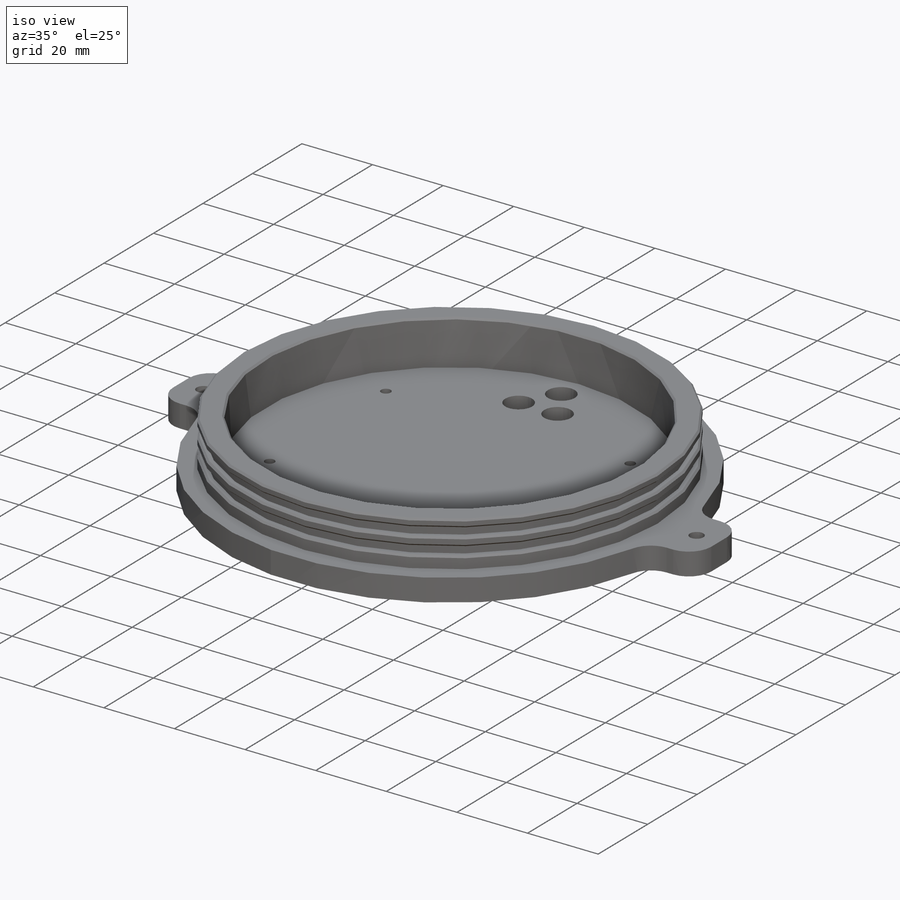
[diagram: iso view]
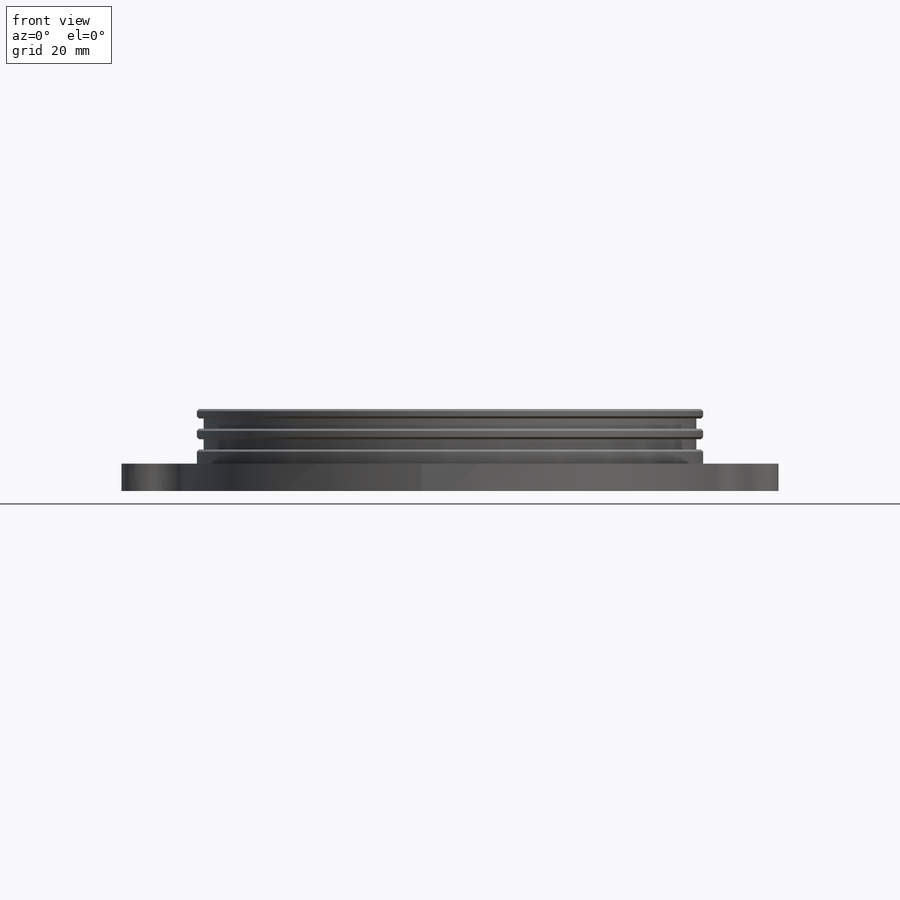
[diagram: front view]
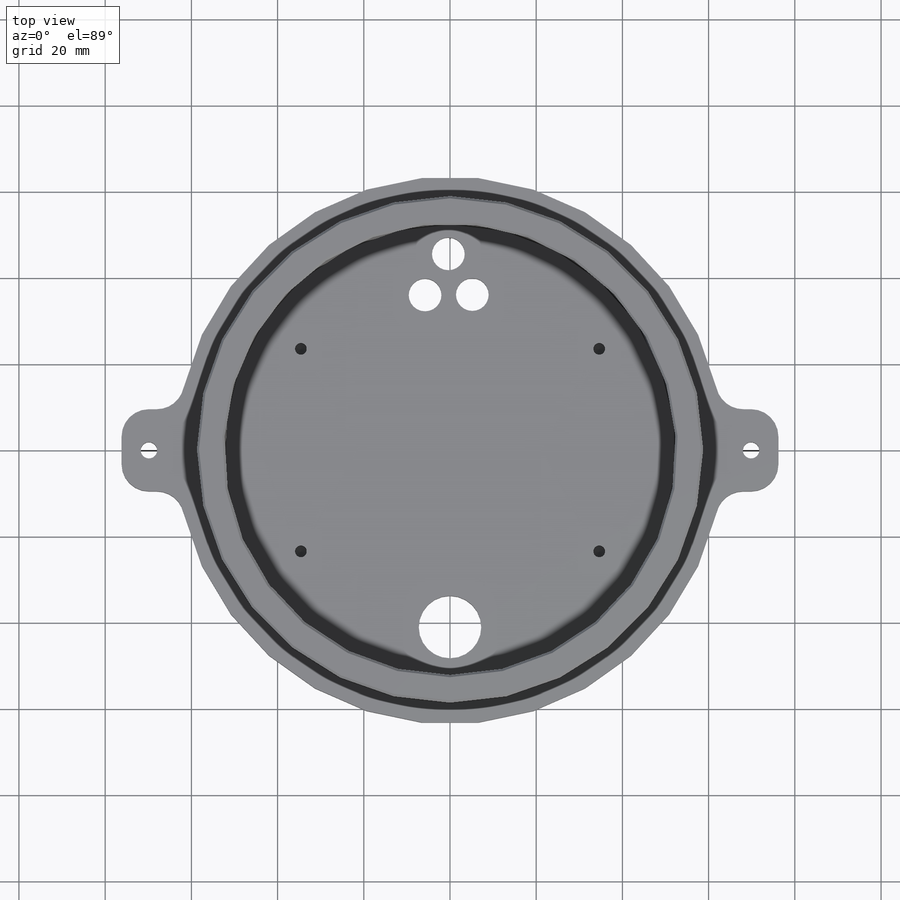
[diagram: top view]
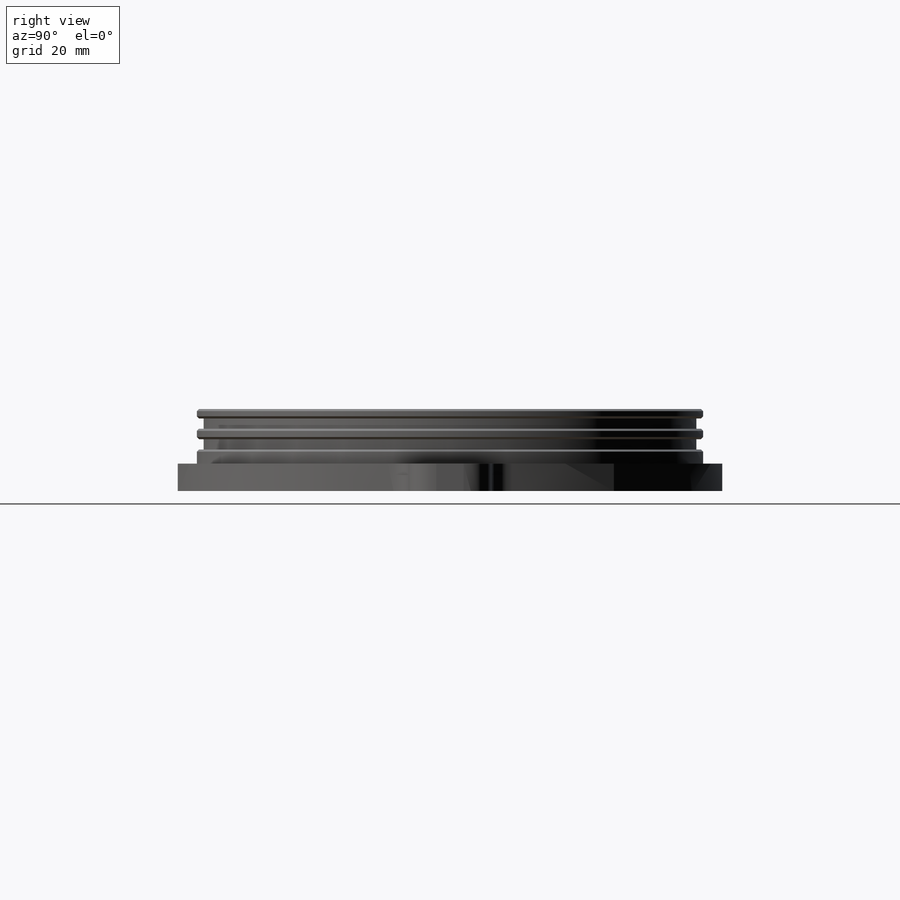
[diagram: right view]
SOLIDWORKS PART (.sldprt)
format: sldprt  version: not decoded by parser v0  size: 384,512 bytes
history: native  units: mm
features: sketch x11, extrude x3, hole x3, material x1, cut_revolve x1, chamfer x1, cut_extrude x1, fillet x1 (+11 scaffold rows collapsed)
feature tree (33):
  scaffold x11  (default folders/planes/origin — collapsed)
  material  "6061 Alloy"
  sketch  "Sketch1"  dims[D1=2.5mm]
  extrude  "Extrude1"  Depth=6.35mm
  sketch  "Sketch2"  dims[D1=39.6875mm]
  extrude  "Extrude2"  Depth=12.7mm
  sketch  "Sketch3"  dims[D1=1.5875mm D2=~2.38125mm]
  cut_revolve  "Cut-Revolve1"  Angle=360deg
  chamfer  "Chamfer1"  Distance=0.5mm Angle=45deg
  sketch  "Sketch5"  dims[D5=6.35mm D1=152.4mm D2=76.2mm D3=19.05mm D4=9.525mm]
  extrude  "Extrude3"  [1 undecoded]
  sketch  "Sketch4"  dims[c1.D1=~4.758398mm c1.D2=73.0mm c2.D1=10.962mm c2.D2=5.481mm c2.D3=10.962mm c2.D4=10.962mm c2.D5=6.329mm c2.D6=~6.328741mm c3.D2=25.4mm]
  cut_extrude  "Cut-Extrude1"  Depth=12.7mm
  hole  "#6 Clearance Hole1"  Diameter=3.7973mm Depth=330.2mm
  sketch  "3DSketch1"  dims[c1.D1=9.525mm c1.D2=9.525mm c1.D3=~6.382817mm c1.D4=6.35mm c2.D4=~7.531395mm c2.D5=6.35mm c2.D3=6.35mm c3.D4=6.35mm]
  sketch  "Sketch6"  dims[hole-wizard template sketch: 47 standard entries collapsed; hole parameters kept: c15.Hole Depth=330.2mm c15.D3=~14.816244mm c15.Drill Angle=118.0deg]
  fillet  "Fillet1"  Radius=6.35mm
  hole  "M14.5 (14.5) Diameter Hole1"  Diameter=14.5mm Depth=19.05mm
  sketch  "3DSketch3"
  sketch  "Sketch8"  dims[hole-wizard template sketch: 59 standard entries collapsed; hole parameters kept: c18.Thru Hole Dia.=14.5mm c18.Thru Hole Depth=19.05mm]
  hole  "Tap Drill for #6 Tap1"  Diameter=2.7051mm Depth=3.302mm
  sketch  "3DSketch4"  dims[D1=69.215mm D2=46.99mm]
  sketch  "Sketch9"  dims[hole-wizard template sketch: 50 standard entries collapsed; hole parameters above]
decode coverage: 19 of 21 modeling features carry decoded parameters
note: ~ marks probable driven/reference dimensions
note: 1 parameter value undecoded
note: suppression state not decoded; provenance and decode notes live in map.json
